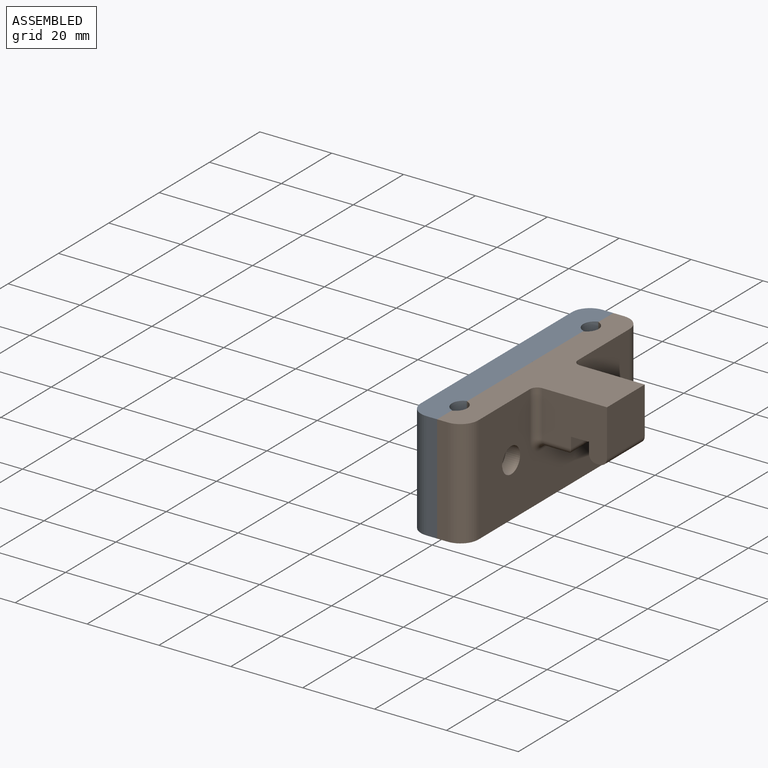
[diagram: assembled view]
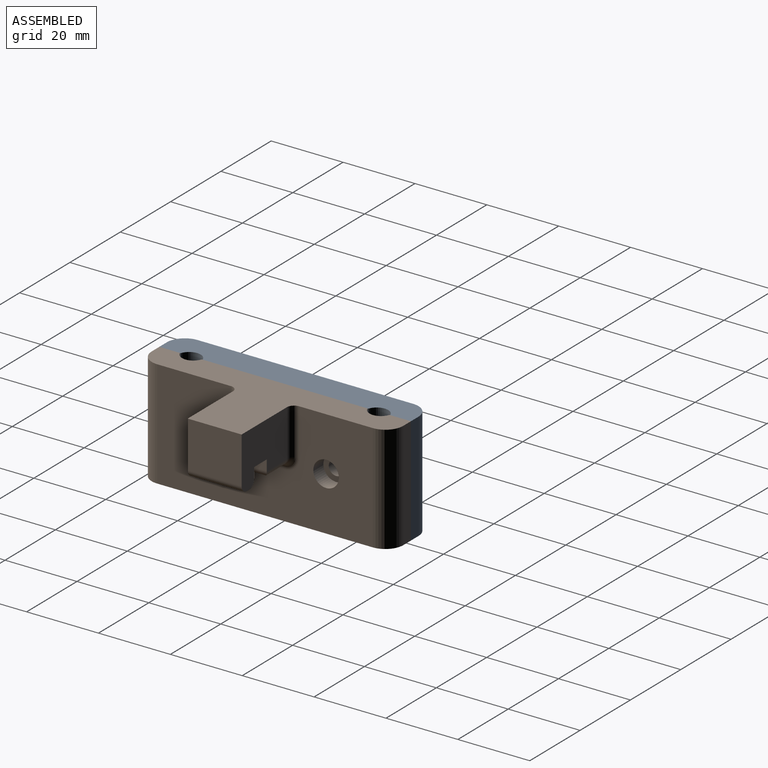
[diagram: assembled view, second angle]
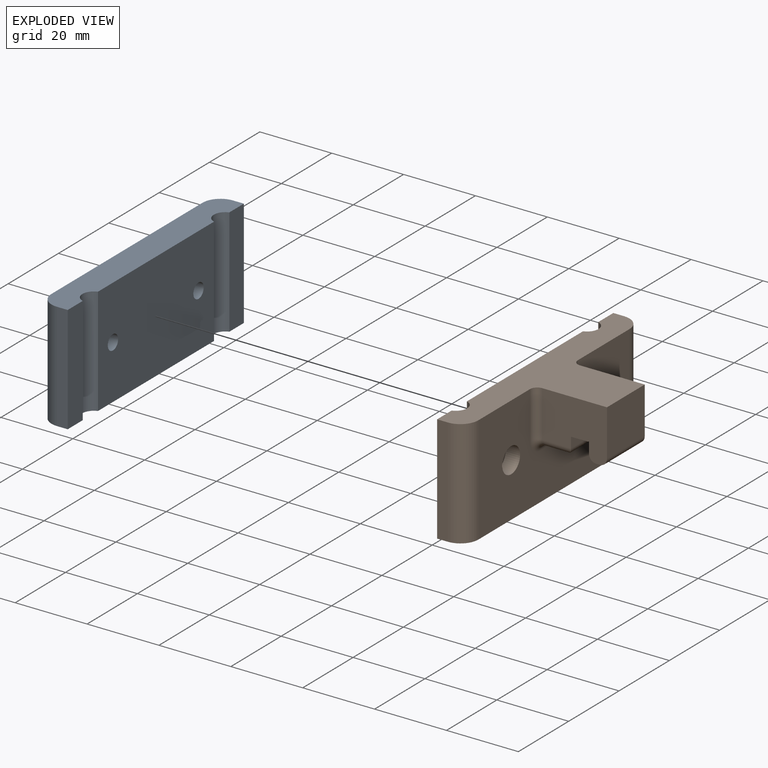
[diagram: exploded view]
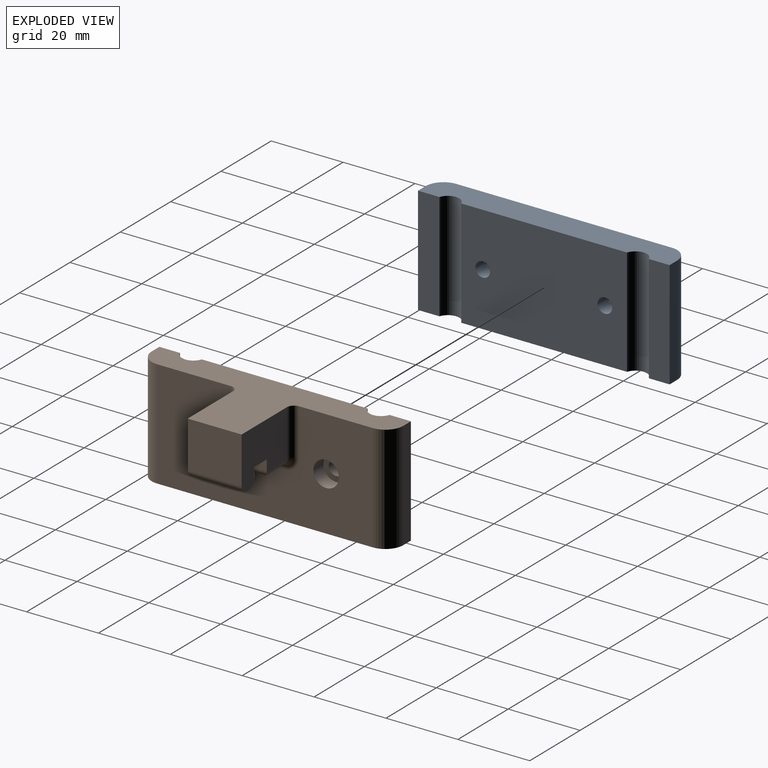
[diagram: exploded view, second angle]
ASSEMBLY  parts=2 mates=3
PART A: 28 faces, bbox 8x70x30 mm
  f0: cylinder r=2.05mm len=4.1mm, axis (-1,0,0), area 51.5mm2, adj f3,f25
  f1: cylinder r=2.05mm len=4.1mm, axis (-1,0,0), area 51.5mm2, adj f3,f12
  f2: plane 60x30mm, normal (-1,0,0), area 1712.7mm2, adj f10,f11,f13,f14,f15,f16,f17,f18
  f3: plane 46.12x30mm, normal (1,0,0), area 1357.2mm2, adj f0,f1,f7,f8,f10,f11
  f4: plane 30x3mm, normal (0,1,0), area 90mm2, adj f9,f10,f11,f26
  f5: plane 30x3mm, normal (0,-1,0), area 90mm2, adj f6,f10,f11,f27
  f6: plane 30x5.96mm, normal (1,0,0), area 178.8mm2, adj f5,f7,f10,f11
  f7: cylinder r=3.2mm len=30mm, axis (0,0,-1), area 240.6mm2, adj f3,f6,f10,f11
  f8: cylinder r=3.2mm len=30mm, axis (0,0,-1), area 240.6mm2, adj f3,f9,f10,f11
  f9: plane 30x5.76mm, normal (1,0,0), area 172.8mm2, adj f4,f8,f10,f11
  f10: plane 70x8mm, normal (0,0,1), area 529.7mm2, adj f2,f3,f4,f5,f6,f7,f8,f9
  f11: plane 70x8mm, normal (0,0,-1), area 529.7mm2, adj f2,f3,f4,f5,f6,f7,f8,f9
  f12: plane 8.2x7.1mm, normal (-1,0,0), area 30.5mm2, adj f1,f13,f14,f15,f16,f17,f18
  f13: plane 4.1x4mm, normal (0,1,0), area 16.4mm2, adj f2,f12,f14,f18
  f14: plane 4x3.55mm, normal (0,0.5,-0.87), area 16.4mm2, adj f2,f12,f13,f15
  f15: plane 4x3.55mm, normal (0,-0.5,-0.87), area 16.4mm2, adj f2,f12,f14,f16
  f16: plane 4.1x4mm, normal (0,-1,0), area 16.4mm2, adj f2,f12,f15,f17
  f17: plane 4x3.55mm, normal (0,-0.5,0.87), area 16.4mm2, adj f2,f12,f16,f18
  f18: plane 4x3.55mm, normal (0,0.5,0.87), area 16.4mm2, adj f2,f12,f13,f17
  f19: plane 4.1x4mm, normal (0,1,0), area 16.4mm2, adj f2,f20,f24,f25
  f20: plane 4x3.55mm, normal (0,0.5,-0.87), area 16.4mm2, adj f2,f19,f21,f25
  f21: plane 4x3.55mm, normal (0,-0.5,-0.87), area 16.4mm2, adj f2,f20,f22,f25
  f22: plane 4.1x4mm, normal (0,-1,0), area 16.4mm2, adj f2,f21,f23,f25
  f23: plane 4x3.55mm, normal (0,-0.5,0.87), area 16.4mm2, adj f2,f22,f24,f25
  f24: plane 4x3.55mm, normal (0,0.5,0.87), area 16.4mm2, adj f2,f19,f23,f25
  f25: plane 8.2x7.1mm, normal (-1,0,0), area 30.5mm2, adj f0,f19,f20,f21,f22,f23,f24
  f26: cylinder r=5mm len=30mm, axis (0,0,-1), area 235.6mm2, adj f2,f4,f10,f11
  f27: cylinder r=5mm len=30mm, axis (0,0,1), area 235.6mm2, adj f2,f5,f10,f11
PART B: 36 faces, bbox 28x70x30 mm
  f0: plane 15x1mm, normal (0,0,1), area 15mm2, adj f1,f20,f34,f35
  f1: plane 18x15mm, normal (0,-1,0), area 227.6mm2, adj f0,f13,f22,f23,f24,f25,f26,f27
  f2: cylinder r=2.05mm len=4.1mm, axis (-1,0,0), area 51.5mm2, adj f5,f17
  f3: cylinder r=2.05mm len=4.1mm, axis (-1,0,0), area 51.5mm2, adj f5,f14
  f4: plane 60x30mm, normal (-1,0,0), area 1404.7mm2, adj f12,f13,f15,f16,f18,f19,f26,f28
  f5: plane 46.12x30mm, normal (1,0,0), area 1357.2mm2, adj f2,f3,f9,f10,f12,f13
  f6: plane 30x3mm, normal (0,1,0), area 90mm2, adj f11,f12,f13,f19
  f7: plane 30x3mm, normal (0,-1,0), area 90mm2, adj f8,f12,f13,f18
  f8: plane 30x5.76mm, normal (1,0,0), area 172.8mm2, adj f7,f9,f12,f13
  f9: cylinder r=3.2mm len=30mm, axis (0,0,-1), area 240.6mm2, adj f5,f8,f12,f13
  f10: cylinder r=3.2mm len=30mm, axis (0,0,-1), area 240.6mm2, adj f5,f11,f12,f13
  f11: plane 30x5.96mm, normal (1,0,0), area 178.8mm2, adj f6,f10,f12,f13
  f12: plane 70x8mm, normal (0,0,1), area 529.7mm2, adj f4,f5,f6,f7,f8,f9,f10,f11
  f13: plane 70x28mm, normal (0,0,-1), area 831.4mm2, adj f1,f4,f5,f6,f7,f8,f9,f10
  f14: plane 7.1x7.1mm, normal (-1,0,0), area 26.4mm2, adj f3,f15
  f15: cylinder r=3.55mm len=7.1mm, axis (-1,0,0), area 89.2mm2, adj f4,f14
  f16: cylinder r=3.55mm len=7.1mm, axis (-1,0,0), area 89.2mm2, adj f4,f17
  f17: plane 7.1x7.1mm, normal (-1,0,0), area 26.4mm2, adj f2,f16
  f18: cylinder r=5mm len=30mm, axis (0,0,1), area 235.6mm2, adj f4,f7,f12,f13
  f19: cylinder r=5mm len=30mm, axis (0,0,-1), area 235.6mm2, adj f4,f6,f12,f13
  f20: plane 18x15mm, normal (0,1,0), area 227.6mm2, adj f0,f13,f22,f23,f24,f25,f31,f33
  f21: plane 11x6mm, normal (0,0,1), area 66mm2, adj f27,f29,f30,f31
  f22: plane 15x13mm, normal (-1,0,0), area 195mm2, adj f1,f13,f20,f35
  f23: plane 15x2.93mm, normal (-1,0,0), area 44mm2, adj f1,f20,f24,f29
  f24: plane 15x5mm, normal (0,0,1), area 75mm2, adj f1,f20,f23,f25
  f25: plane 15x2.93mm, normal (1,0,0), area 44mm2, adj f1,f20,f24,f34
  f26: cylinder r=2mm len=13mm, axis (0,0,1), area 40.8mm2, adj f1,f4,f13,f28
  f27: cylinder r=2mm len=8mm, axis (-1,0,0), area 22.8mm2, adj f1,f21,f28,f29
  f28: torus R=4mm, axis (-1,0,0), area 13.5mm2, adj f4,f26,f27,f30
  f29: cylinder r=2mm len=15mm, axis (0,-1,0), area 42.6mm2, adj f21,f23,f27,f31
  f30: cylinder r=2mm len=11mm, axis (0,1,0), area 34.6mm2, adj f4,f21,f28,f32
  f31: cylinder r=2mm len=8mm, axis (1,0,0), area 22.8mm2, adj f20,f21,f29,f32
  f32: torus R=4mm, axis (-1,0,0), area 13.5mm2, adj f4,f30,f31,f33
  f33: cylinder r=2mm len=13mm, axis (0,0,-1), area 40.8mm2, adj f4,f13,f20,f32
  f34: cylinder r=2mm len=15mm, axis (0,1,0), area 47.1mm2, adj f0,f1,f20,f25
  f35: cylinder r=2mm len=15mm, axis (0,-1,0), area 47.1mm2, adj f0,f1,f20,f22
PLACE A rot(axis=(1,0,0),0deg) t=(12.5,1.27,15)mm
PLACE B rot(axis=(0,1,0),180deg) t=(28.5,1.27,45)mm
MATE parallel A.f3 <-> B.f5  axis (1,0,0) through (20.5,36.37,30)mm
MATE cylindrical B.f2 <-> A.f0  axis (1,0,0) through (26.5,19.27,30)mm
MATE cylindrical B.f3 <-> A.f1  axis (1,0,0) through (26.5,53.27,30)mm
